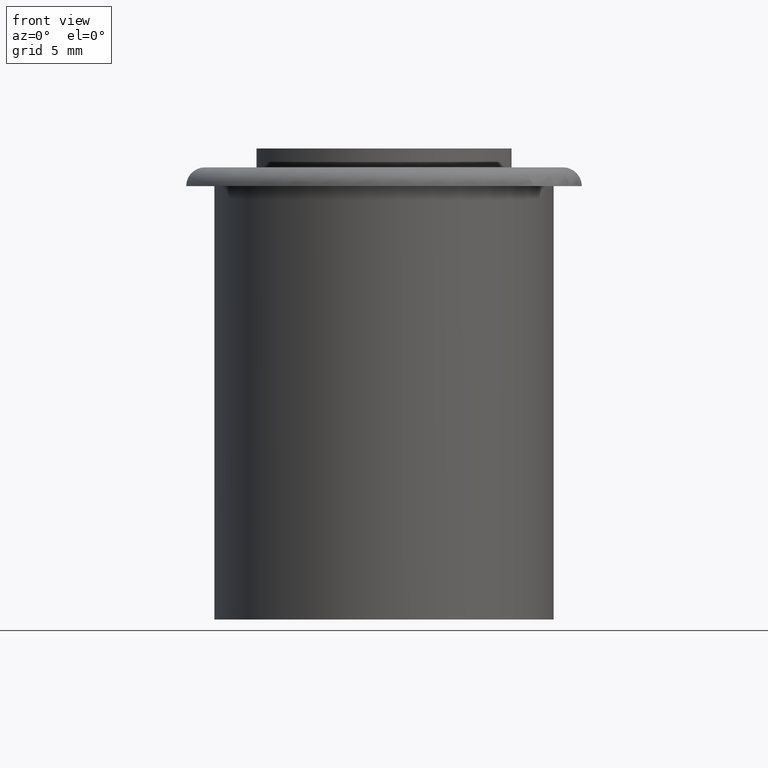
[diagram: clean part render]
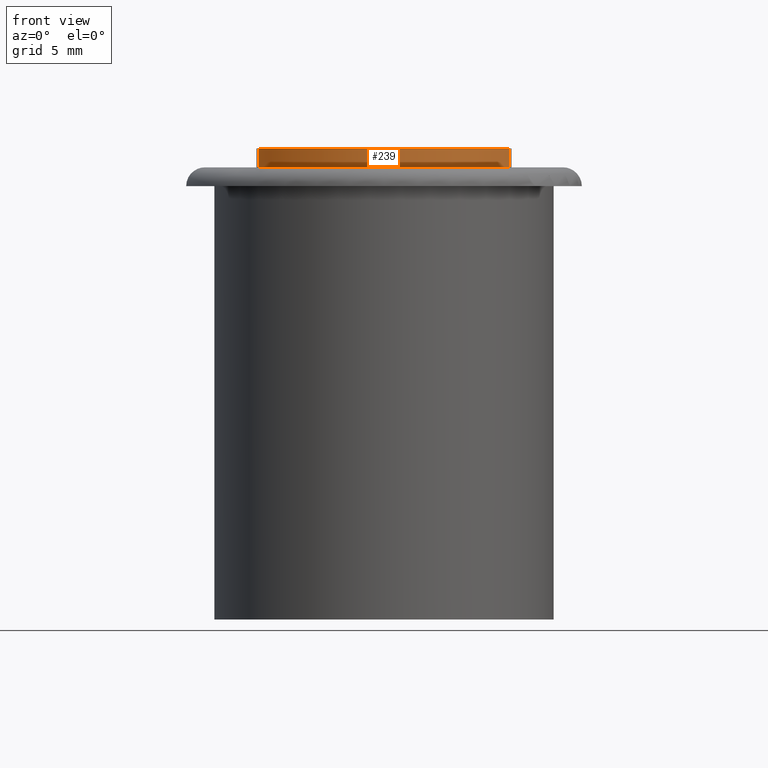
[diagram: same view with one face highlighted and labeled with its STEP entity id]
A machine part, front view. The second image highlights one B-rep face of the part: STEP entity #239.
In plain terms, the highlighted cylindrical surface (partial cylindrical patch) has radius 7.5 mm, axis along (0, 0, 1).
Its self-contained STEP definition (entity closure, byte-faithful):
#37=FACE_OUTER_BOUND('',#54,.T.);
#54=EDGE_LOOP('',(#195,#196,#197,#198));
#63=LINE('',#362,#75);
#67=LINE('',#375,#79);
#75=VECTOR('',#286,0.999999999999996);
#79=VECTOR('',#300,0.999999999999996);
#88=CIRCLE('',#251,7.5);
#98=CIRCLE('',#267,7.5);
#102=VERTEX_POINT('',#355);
#105=VERTEX_POINT('',#360);
#108=VERTEX_POINT('',#370);
#109=VERTEX_POINT('',#374);
#125=EDGE_CURVE('',#105,#102,#63,.T.);
#129=EDGE_CURVE('',#102,#108,#88,.T.);
#131=EDGE_CURVE('',#108,#109,#67,.T.);
#146=EDGE_CURVE('',#109,#105,#98,.T.);
#195=ORIENTED_EDGE('',*,*,#125,.F.);
#196=ORIENTED_EDGE('',*,*,#146,.F.);
#197=ORIENTED_EDGE('',*,*,#131,.F.);
#198=ORIENTED_EDGE('',*,*,#129,.F.);
#211=CYLINDRICAL_SURFACE('',#269,7.5);
#239=ADVANCED_FACE('',(#37),#211,.T.);
#251=AXIS2_PLACEMENT_3D('',#371,#294,#295);
#267=AXIS2_PLACEMENT_3D('',#404,#333,#334);
#269=AXIS2_PLACEMENT_3D('',#406,#337,#338);
#286=DIRECTION('',(0.,0.,1.));
#294=DIRECTION('center_axis',(0.,0.,1.));
#295=DIRECTION('ref_axis',(-1.,0.,0.));
#300=DIRECTION('',(0.,0.,-1.));
#333=DIRECTION('center_axis',(0.,0.,-1.));
#334=DIRECTION('ref_axis',(-1.,0.,0.));
#337=DIRECTION('center_axis',(0.,0.,1.));
#338=DIRECTION('ref_axis',(-1.,0.,0.));
#355=CARTESIAN_POINT('',(-6.65340149692546,-3.46153846153846,25.));
#360=CARTESIAN_POINT('',(-6.65340149692546,-3.46153846153846,24.));
#362=CARTESIAN_POINT('',(-6.65340149692546,-3.46153846153846,24.));
#370=CARTESIAN_POINT('',(6.65340149692546,-3.46153846153846,25.));
#371=CARTESIAN_POINT('Origin',(0.,0.,25.));
#374=CARTESIAN_POINT('',(6.65340149692546,-3.46153846153846,24.));
#375=CARTESIAN_POINT('',(6.65340149692546,-3.46153846153846,24.));
#404=CARTESIAN_POINT('Origin',(0.,0.,24.));
#406=CARTESIAN_POINT('Origin',(0.,0.,24.));